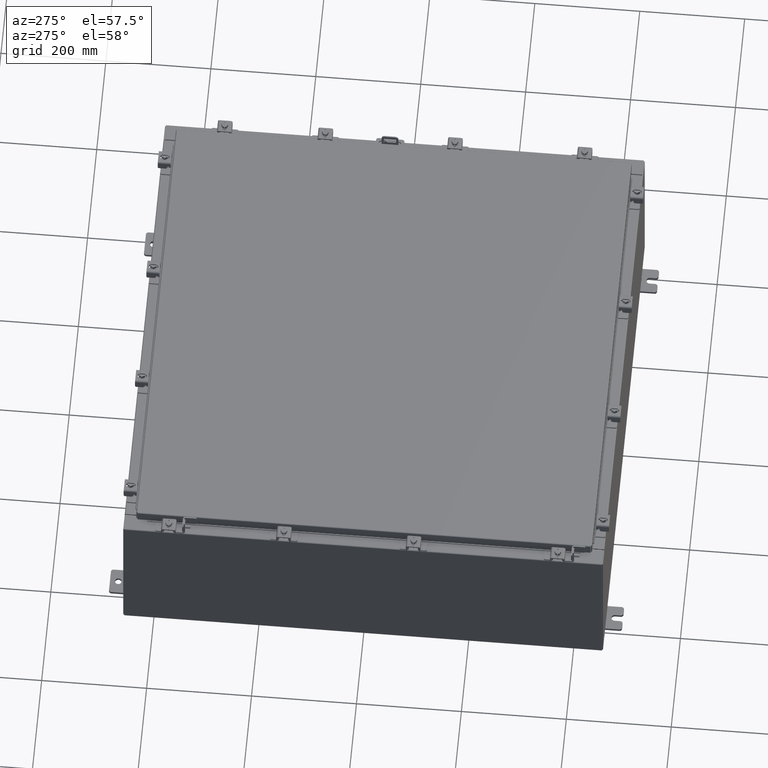
[diagram: clean part render]
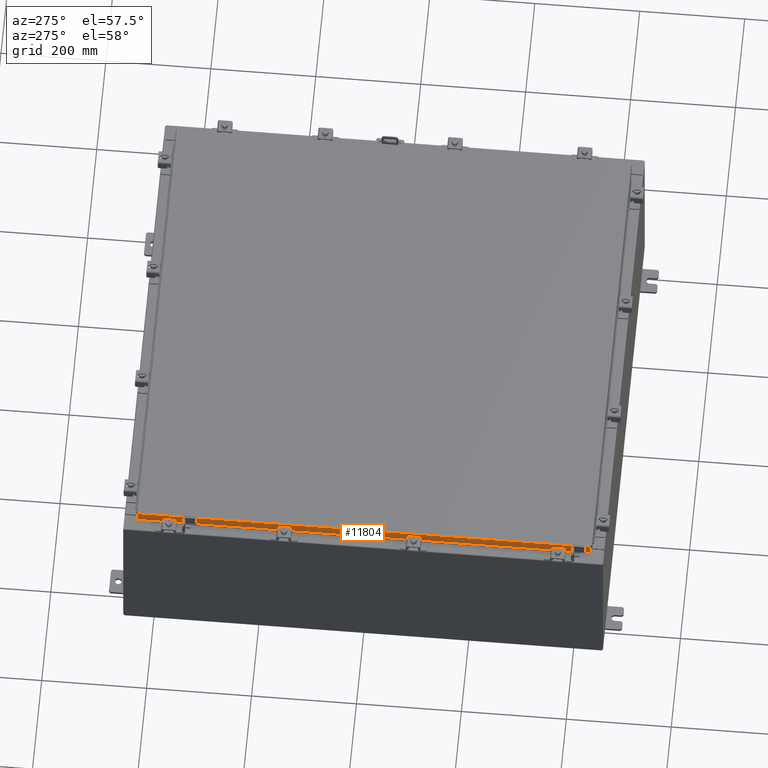
[diagram: same view with one face highlighted and labeled with its STEP entity id]
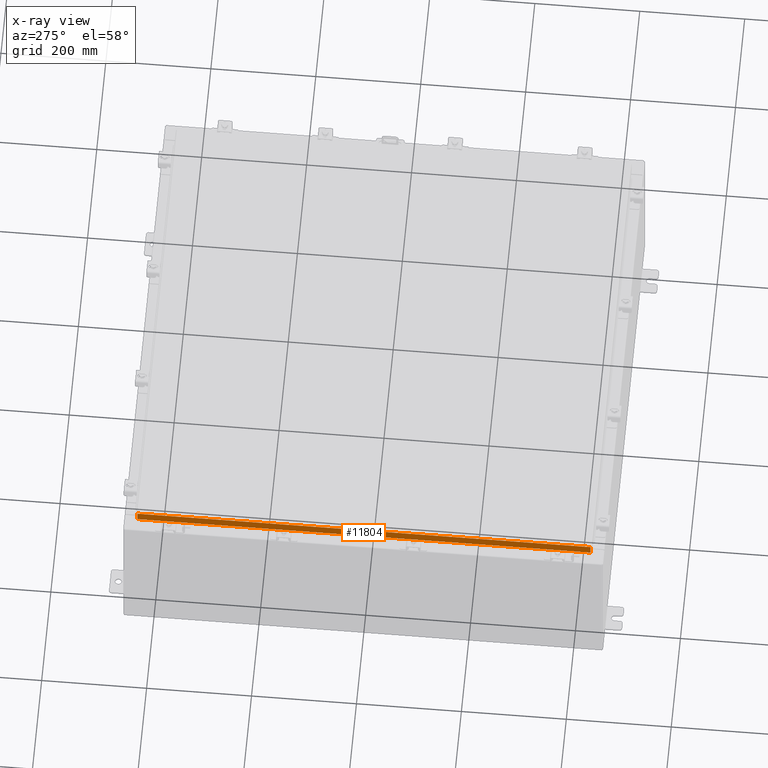
[diagram: x-ray of the same camera — body ghosted, the highlighted face saturated]
A machine part, auxiliary view. The second image highlights one B-rep face of the part: STEP entity #11804.
The next image is the same camera in x-ray: the body ghosted, the highlighted face saturated — about 0% of this face is hidden behind the body in this view.
In plain terms, the highlighted planar face has unit normal (1, 0, -0).
Its self-contained STEP definition (entity closure, byte-faithful):
#207 = VERTEX_POINT ( 'NONE', #10127 ) ;
#1092 = VERTEX_POINT ( 'NONE', #26777 ) ;
#2178 = LINE ( 'NONE', #10084, #7109 ) ;
#2692 = EDGE_CURVE ( 'NONE', #21763, #14317, #24565, .T. ) ;
#3509 = DIRECTION ( 'NONE',  ( -2.818880942772360500E-015, 6.982962677686269100E-015, -1.000000000000000000 ) ) ;
#3911 = PLANE ( 'NONE',  #19781 ) ;
#3986 = LINE ( 'NONE', #21235, #4659 ) ;
#4167 = EDGE_CURVE ( 'NONE', #21763, #1092, #12338, .T. ) ;
#4659 = VECTOR ( 'NONE', #8662, 39.37007874015748100 ) ;
#6873 = CARTESIAN_POINT ( 'NONE',  ( -17.09400000000000100, 17.00515786437626900, -0.08770000000000026400 ) ) ;
#7109 = VECTOR ( 'NONE', #22669, 39.37007874015748100 ) ;
#7481 = LINE ( 'NONE', #12281, #12374 ) ;
#8138 = DIRECTION ( 'NONE',  ( 1.000000000000000000, 3.491332948470575600E-031, -2.818880942772360100E-015 ) ) ;
#8348 = EDGE_CURVE ( 'NONE', #22366, #26195, #3986, .T. ) ;
#8662 = DIRECTION ( 'NONE',  ( 4.379057701015054300E-047, 1.000000000000000000, 1.238552822680358400E-016 ) ) ;
#8892 = ORIENTED_EDGE ( 'NONE', *, *, #23058, .F. ) ;
#9478 = EDGE_CURVE ( 'NONE', #1092, #22366, #10798, .T. ) ;
#9962 = CARTESIAN_POINT ( 'NONE',  ( -17.09399999999999400, -16.25515786437626500, -0.8500000000000020900 ) ) ;
#10084 = CARTESIAN_POINT ( 'NONE',  ( -17.09400000000000100, -17.09400000000000100, -0.8499999999999999800 ) ) ;
#10127 = CARTESIAN_POINT ( 'NONE',  ( -17.09399999999999400, 16.25515786437627200, -0.8500000000000020900 ) ) ;
#10798 = LINE ( 'NONE', #14033, #12112 ) ;
#11686 = ORIENTED_EDGE ( 'NONE', *, *, #20830, .F. ) ;
#11693 = VECTOR ( 'NONE', #22856, 39.37007874015748100 ) ;
#11804 = ADVANCED_FACE ( 'NONE', ( #18928 ), #3911, .F. ) ;
#12112 = VECTOR ( 'NONE', #3509, 39.37007874015748100 ) ;
#12281 = CARTESIAN_POINT ( 'NONE',  ( -17.09399999999999400, -16.25515786437626900, -0.8500000000000020900 ) ) ;
#12338 = LINE ( 'NONE', #12406, #11693 ) ;
#12374 = VECTOR ( 'NONE', #14404, 39.37007874015748100 ) ;
#12406 = CARTESIAN_POINT ( 'NONE',  ( -17.09400000000000100, -17.09400000000000100, -0.08770000000000026400 ) ) ;
#13374 = ORIENTED_EDGE ( 'NONE', *, *, #4167, .F. ) ;
#13795 = ORIENTED_EDGE ( 'NONE', *, *, #9478, .F. ) ;
#14033 = CARTESIAN_POINT ( 'NONE',  ( -17.09400000000000100, -17.00515786437626900, -0.07470000000000015500 ) ) ;
#14317 = VERTEX_POINT ( 'NONE', #21349 ) ;
#14404 = DIRECTION ( 'NONE',  ( -0.0000000000000000000, 1.000000000000000000, -0.0000000000000000000 ) ) ;
#15305 = CARTESIAN_POINT ( 'NONE',  ( -17.09400000000000100, 17.00515786437626900, 1.682818364097186200E-013 ) ) ;
#16274 = ORIENTED_EDGE ( 'NONE', *, *, #2692, .T. ) ;
#18386 = ORIENTED_EDGE ( 'NONE', *, *, #8348, .F. ) ;
#18587 = CARTESIAN_POINT ( 'NONE',  ( -17.09400000000000100, 0.0000000000000000000, 4.808052468849102900E-014 ) ) ;
#18862 = EDGE_LOOP ( 'NONE', ( #13374, #16274, #8892, #11686, #18386, #13795 ) ) ;
#18928 = FACE_OUTER_BOUND ( 'NONE', #18862, .T. ) ;
#18978 = VECTOR ( 'NONE', #19528, 39.37007874015748100 ) ;
#19528 = DIRECTION ( 'NONE',  ( -2.818880942772360500E-015, 6.982962677686269100E-015, -1.000000000000000000 ) ) ;
#19781 = AXIS2_PLACEMENT_3D ( 'NONE', #18587, #8138, #22794 ) ;
#20830 = EDGE_CURVE ( 'NONE', #26195, #207, #7481, .T. ) ;
#21235 = CARTESIAN_POINT ( 'NONE',  ( -17.09400000000000100, -17.09400000000000100, -0.8499999999999999800 ) ) ;
#21349 = CARTESIAN_POINT ( 'NONE',  ( -17.09400000000000100, 17.00515786437627600, -0.8499999999999955400 ) ) ;
#21763 = VERTEX_POINT ( 'NONE', #6873 ) ;
#22366 = VERTEX_POINT ( 'NONE', #24639 ) ;
#22669 = DIRECTION ( 'NONE',  ( 4.379057701015054300E-047, 1.000000000000000000, 1.238552822680358400E-016 ) ) ;
#22794 = DIRECTION ( 'NONE',  ( -2.818880942772360100E-015, 0.0000000000000000000, -1.000000000000000000 ) ) ;
#22856 = DIRECTION ( 'NONE',  ( 3.491332948470575600E-031, -1.000000000000000000, -9.516562228463833000E-046 ) ) ;
#23058 = EDGE_CURVE ( 'NONE', #207, #14317, #2178, .T. ) ;
#24565 = LINE ( 'NONE', #15305, #18978 ) ;
#24639 = CARTESIAN_POINT ( 'NONE',  ( -17.09400000000000100, -17.00515786437626500, -0.8499999999999999800 ) ) ;
#26195 = VERTEX_POINT ( 'NONE', #9962 ) ;
#26777 = CARTESIAN_POINT ( 'NONE',  ( -17.09400000000000100, -17.00515786437626900, -0.08770000000000026400 ) ) ;